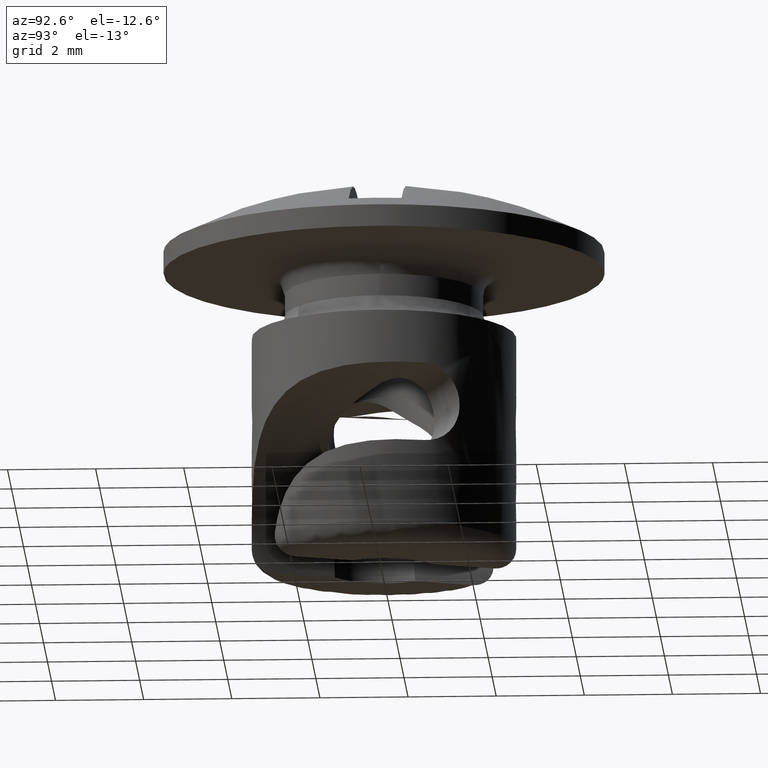
[diagram: clean part render]
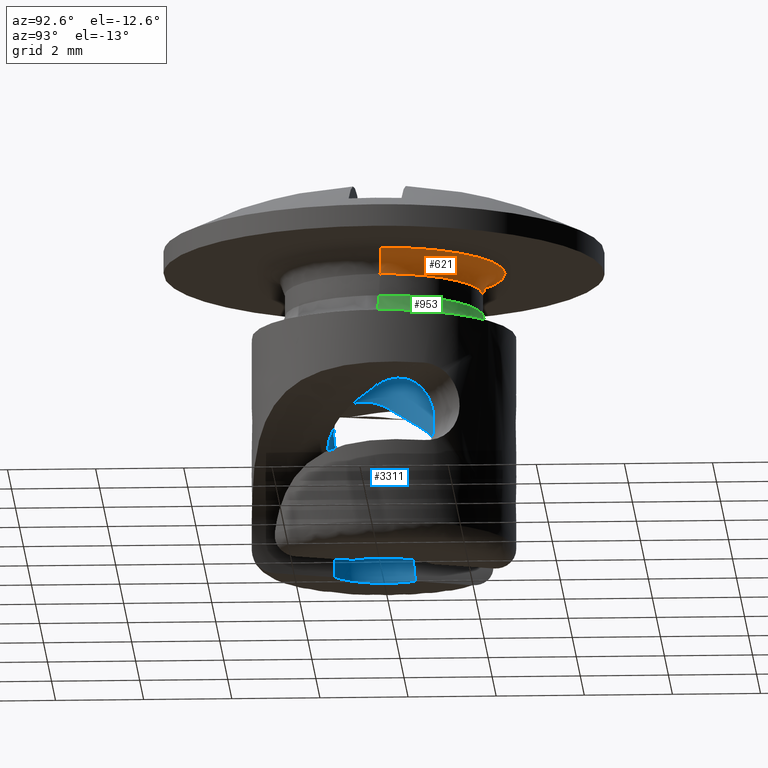
[diagram: same view with three faces highlighted in distinct colors, each labeled with its STEP entity id]
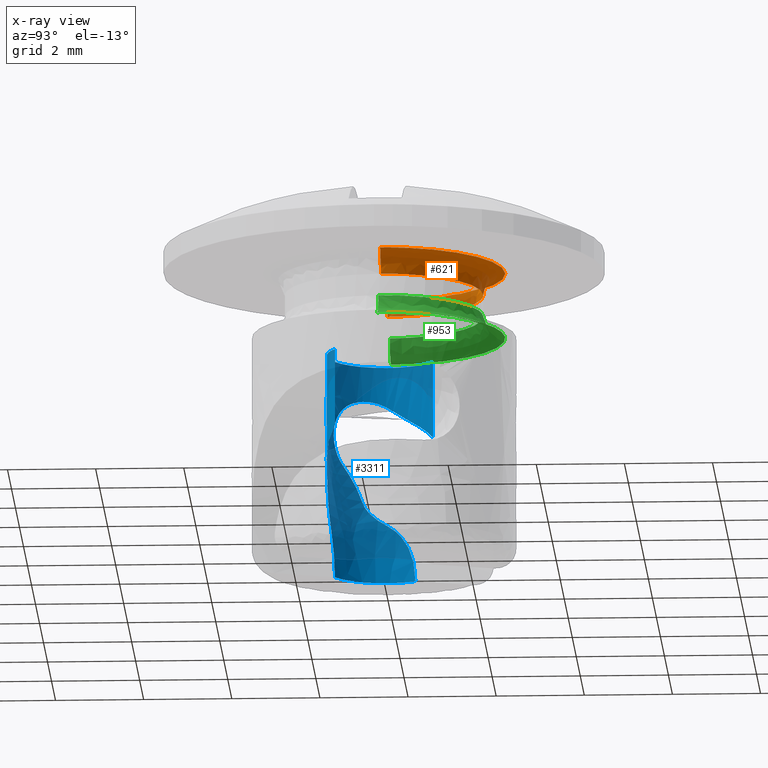
[diagram: x-ray of the same camera — body ghosted, the three highlighted faces saturated]
A machine part, auxiliary view with three faces highlighted in distinct colors.
The next image is the same camera in x-ray (body ghosted, the three faces saturated) — at least one of them is partly hidden behind the body in this view.
Their STEP definitions:

[orange] entity #621 — the highlighted face is a freeform B-spline surface patch.
#346=CARTESIAN_POINT('',(-2.750000000000000,0.0,5.496905E-014));
#347=VERTEX_POINT('',#346);
#348=CARTESIAN_POINT('',(-2.749782871458075,-0.034556609704872,5.452264E-014));
#349=VERTEX_POINT('',#348);
#350=CARTESIAN_POINT('',(-2.750000000000000,0.0,5.496905E-014));
#351=CARTESIAN_POINT('',(-2.749999999948959,-0.017278986990524,5.474583E-014));
#352=CARTESIAN_POINT('',(-2.749782871458075,-0.034556609704872,5.452264E-014));
#360=(BOUNDED_CURVE()B_SPLINE_CURVE(2,(#350,#351,#352),.UNSPECIFIED.,.F.,.U.)B_SPLINE_CURVE_WITH_KNOTS((3,3),(0.0,0.002215704079994),.UNSPECIFIED.)CURVE()GEOMETRIC_REPRESENTATION_ITEM()RATIONAL_B_SPLINE_CURVE((1.0,0.997404141200289,0.994854295640047))REPRESENTATION_ITEM(''));
#361=EDGE_CURVE('',#347,#349,#360,.T.);
#396=CARTESIAN_POINT('',(2.749782871458075,0.034556609704872,2.739134E-014));
#397=VERTEX_POINT('',#396);
#411=CARTESIAN_POINT('',(2.749782871458075,0.034556609704872,2.739134E-014));
#412=CARTESIAN_POINT('',(2.747421154181129,0.225015246663446,2.739718E-014));
#413=CARTESIAN_POINT('',(2.711373740235681,0.532688507916313,2.756823E-014));
#414=CARTESIAN_POINT('',(2.602639291412195,0.904454009660128,2.810173E-014));
#415=CARTESIAN_POINT('',(2.484969787623392,1.189520476824100,2.868276E-014));
#416=CARTESIAN_POINT('',(2.324902051586191,1.485801319773259,2.947602E-014));
#417=CARTESIAN_POINT('',(2.104609569589788,1.784203322922464,3.057120E-014));
#418=CARTESIAN_POINT('',(1.860745811851893,2.032438847439234,3.178614E-014));
#419=CARTESIAN_POINT('',(1.586949819905988,2.255815284604223,3.315195E-014));
#420=CARTESIAN_POINT('',(1.299931389796286,2.432936059386111,3.458552E-014));
#421=CARTESIAN_POINT('',(0.966758779711438,2.581098159844041,3.625142E-014));
#422=CARTESIAN_POINT('',(0.639859148547585,2.683062115113516,3.788733E-014));
#423=CARTESIAN_POINT('',(0.302105809486887,2.740305731628021,3.957906E-014));
#424=CARTESIAN_POINT('',(-0.062139408985700,2.756949581632268,4.140491E-014));
#425=CARTESIAN_POINT('',(-0.414890938039984,2.727724751720948,4.317457E-014));
#426=CARTESIAN_POINT('',(-0.759774732770037,2.649421114881068,4.490633E-014));
#427=CARTESIAN_POINT('',(-1.077159886471227,2.537379702794902,4.650127E-014));
#428=CARTESIAN_POINT('',(-1.424569872155509,2.365912888452518,4.824863E-014));
#429=CARTESIAN_POINT('',(-1.773185517658618,2.118390891306698,5.000444E-014));
#430=CARTESIAN_POINT('',(-2.060003419619596,1.833246774883832,5.145156E-014));
#431=CARTESIAN_POINT('',(-2.276728466134345,1.554016264308456,5.254705E-014));
#432=CARTESIAN_POINT('',(-2.447257419028718,1.270085169467347,5.341105E-014));
#433=CARTESIAN_POINT('',(-2.580942661077565,0.967126856670704,5.409091E-014));
#434=CARTESIAN_POINT('',(-2.668662700131359,0.682998521134084,5.453970E-014));
#435=CARTESIAN_POINT('',(-2.732842156530887,0.364130243539380,5.487155E-014));
#436=CARTESIAN_POINT('',(-2.750009366979201,0.140051245414527,5.496468E-014));
#437=CARTESIAN_POINT('',(-2.750000000000000,0.0,5.496905E-014));
#438=B_SPLINE_CURVE_WITH_KNOTS('',3,(#411,#412,#413,#414,#415,#416,#417,#418,#419,#420,#421,#422,#423,#424,#425,#426,#427,#428,#429,#430,#431,#432,#433,#434,#435,#436,#437),.UNSPECIFIED.,.F.,.U.,(4,1,1,1,1,1,1,1,1,1,1,1,1,1,1,1,1,1,1,1,1,1,1,1,4),(9.732828E-009,0.571412348802319,0.924346836372584,1.159632313122021,1.495760148540566,1.932726756703803,2.268853580995844,2.537754907507623,2.991528782831429,3.277236733553325,3.630170278449755,4.016715849888128,4.302414734800024,4.722569375178209,5.075507796041912,5.361215518162040,5.730952126796076,6.235144690588344,6.638496536839272,6.941012279927641,7.293946381827048,7.630070699270424,7.932588396814000,8.184683200495718,8.604835668774879),.UNSPECIFIED.);
#439=EDGE_CURVE('',#397,#347,#438,.T.);
#467=CARTESIAN_POINT('',(2.249822389316115,0.028270417823143,-0.500000475521371));
#468=VERTEX_POINT('',#467);
#484=CARTESIAN_POINT('',(2.249822389316115,0.028270417823143,-0.500000475521371));
#485=CARTESIAN_POINT('',(2.249821893902961,0.028271997818385,-1.020467E-010));
#486=CARTESIAN_POINT('',(2.749782871458076,0.034556609704872,2.739134E-014));
#494=(BOUNDED_CURVE()B_SPLINE_CURVE(2,(#484,#485,#486),.UNSPECIFIED.,.F.,.U.)B_SPLINE_CURVE_WITH_KNOTS((3,3),(-1.725135618571930,-0.274865356927566),.UNSPECIFIED.)CURVE()GEOMETRIC_REPRESENTATION_ITEM()RATIONAL_B_SPLINE_CURVE((0.883342497632617,0.624617050175272,0.883342149578353))REPRESENTATION_ITEM(''));
#495=EDGE_CURVE('',#468,#397,#494,.T.);
#499=CARTESIAN_POINT('',(-2.249822389316115,-0.028270417823144,-0.500000475521371));
#500=VERTEX_POINT('',#499);
#501=CARTESIAN_POINT('',(-2.249822389316116,-0.028270417823144,-0.500000475521371));
#502=CARTESIAN_POINT('',(-2.249821893902961,-0.028271997818386,-1.020330E-010));
#503=CARTESIAN_POINT('',(-2.749782871458076,-0.034556609704872,5.452264E-014));
#511=(BOUNDED_CURVE()B_SPLINE_CURVE(2,(#501,#502,#503),.UNSPECIFIED.,.F.,.U.)B_SPLINE_CURVE_WITH_KNOTS((3,3),(-1.725135618571930,-0.274865356927566),.UNSPECIFIED.)CURVE()GEOMETRIC_REPRESENTATION_ITEM()RATIONAL_B_SPLINE_CURVE((0.883342497632617,0.624617050175272,0.883342149578353))REPRESENTATION_ITEM(''));
#512=EDGE_CURVE('',#500,#349,#511,.T.);
#547=CARTESIAN_POINT('',(-2.251032604085169,-0.028288799046313,-0.534769027066615));
#548=CARTESIAN_POINT('',(-2.279321403131482,2.222743805038856,-0.534769027066615));
#549=CARTESIAN_POINT('',(-0.028288799046313,2.251032604085169,-0.534769027066615));
#550=CARTESIAN_POINT('',(2.222743805038856,2.279321403131482,-0.534769027066615));
#551=CARTESIAN_POINT('',(2.251032604085169,0.028288799046313,-0.534769027066615));
#552=CARTESIAN_POINT('',(-2.211056288242679,-0.027786415400946,0.038768651351483));
#553=CARTESIAN_POINT('',(-2.238842703643625,2.183269872841732,0.038768651351483));
#554=CARTESIAN_POINT('',(-0.027786415400946,2.211056288242679,0.038768651351483));
#555=CARTESIAN_POINT('',(2.183269872841732,2.238842703643625,0.038768651351483));
#556=CARTESIAN_POINT('',(2.211056288242679,0.027786415400947,0.038768651351483));
#557=CARTESIAN_POINT('',(-2.784548717477850,-0.034993513181660,-0.001210319800986));
#558=CARTESIAN_POINT('',(-2.819542230659510,2.749555204296190,-0.001210319800986));
#559=CARTESIAN_POINT('',(-0.034993513181660,2.784548717477850,-0.001210319800986));
#560=CARTESIAN_POINT('',(2.749555204296190,2.819542230659510,-0.001210319800986));
#561=CARTESIAN_POINT('',(2.784548717477850,0.034993513181660,-0.001210319800986));
#569=(BOUNDED_SURFACE()B_SPLINE_SURFACE(2,2,((#547,#552,#557),(#548,#553,#558),(#549,#554,#559),(#550,#555,#560),(#551,#556,#561)),.UNSPECIFIED.,.F.,.F.,.U.)B_SPLINE_SURFACE_WITH_KNOTS((3,2,3),(3,3),(0.0,4.613955674015531,9.227911348031062),(0.0,0.911187572013472),.UNSPECIFIED.)GEOMETRIC_REPRESENTATION_ITEM()RATIONAL_B_SPLINE_SURFACE(((0.910480188045054,0.597479367017781,0.910479825480873),(0.643806715102661,0.422481712037319,0.643806458731070),(0.910480188045054,0.597479367017781,0.910479825480873),(0.643806715102661,0.422481712037319,0.643806458731070),(0.910480188045054,0.597479367017781,0.910479825480873)))REPRESENTATION_ITEM('')SURFACE());
#570=CARTESIAN_POINT('',(-2.250000000000000,0.0,-0.499999999999945));
#571=VERTEX_POINT('',#570);
#572=CARTESIAN_POINT('',(-0.019633587222252,2.249914336647404,-0.500000237179640));
#573=VERTEX_POINT('',#572);
#574=CARTESIAN_POINT('',(-2.250000000000000,0.0,-0.499999999999945));
#575=CARTESIAN_POINT('',(-2.250000000000004,2.230451331862164,-0.500000001480715));
#576=CARTESIAN_POINT('',(-0.019633587222252,2.249914336647403,-0.500000237179640));
#584=(BOUNDED_CURVE()B_SPLINE_CURVE(2,(#574,#575,#576),.UNSPECIFIED.,.F.,.U.)B_SPLINE_CURVE_WITH_KNOTS((3,3),(0.0,0.248460193164341),.UNSPECIFIED.)CURVE()GEOMETRIC_REPRESENTATION_ITEM()RATIONAL_B_SPLINE_CURVE((1.0,0.708910777108336,0.996414230598439))REPRESENTATION_ITEM(''));
#585=EDGE_CURVE('',#571,#573,#584,.T.);
#586=ORIENTED_EDGE('',*,*,#585,.F.);
#587=CARTESIAN_POINT('',(-2.249822389316116,-0.028270417823144,-0.500000475521371));
#588=CARTESIAN_POINT('',(-2.249999999999108,-0.014135766836725,-0.500000237760658));
#589=CARTESIAN_POINT('',(-2.250000000000000,0.0,-0.499999999999945));
#597=(BOUNDED_CURVE()B_SPLINE_CURVE(2,(#587,#588,#589),.UNSPECIFIED.,.F.,.U.)B_SPLINE_CURVE_WITH_KNOTS((3,3),(0.997784543868147,1.0),.UNSPECIFIED.)CURVE()GEOMETRIC_REPRESENTATION_ITEM()RATIONAL_B_SPLINE_CURVE((0.994854866321043,0.997404431689606,1.0))REPRESENTATION_ITEM(''));
#598=EDGE_CURVE('',#500,#571,#597,.T.);
#599=ORIENTED_EDGE('',*,*,#598,.F.);
#600=ORIENTED_EDGE('',*,*,#512,.T.);
#601=ORIENTED_EDGE('',*,*,#361,.F.);
#602=ORIENTED_EDGE('',*,*,#439,.F.);
#603=ORIENTED_EDGE('',*,*,#495,.F.);
#604=CARTESIAN_POINT('',(-0.019633587222252,2.249914336647403,-0.500000237179640));
#605=CARTESIAN_POINT('',(-0.009816980490564,2.249999999999713,-0.500000238217032));
#606=CARTESIAN_POINT('',(-8.953763E-013,2.249999999999714,-0.500000239254406));
#607=CARTESIAN_POINT('',(2.221904975089807,2.249999999999841,-0.500000474046276));
#608=CARTESIAN_POINT('',(2.249822389316115,0.028270417823143,-0.500000475521371));
#616=(BOUNDED_CURVE()B_SPLINE_CURVE(2,(#604,#605,#606,#607,#608),.UNSPECIFIED.,.F.,.U.)B_SPLINE_CURVE_WITH_KNOTS((3,2,3),(0.248460193164341,0.250000000000000,0.497784543868147),.UNSPECIFIED.)CURVE()GEOMETRIC_REPRESENTATION_ITEM()RATIONAL_B_SPLINE_CURVE((0.996414230598439,0.998196004078212,1.0,0.709702349496941,0.994854866321044))REPRESENTATION_ITEM(''));
#617=EDGE_CURVE('',#573,#468,#616,.T.);
#618=ORIENTED_EDGE('',*,*,#617,.F.);
#619=EDGE_LOOP('',(#586,#599,#600,#601,#602,#603,#618));
#620=FACE_OUTER_BOUND('',#619,.T.);
#621=ADVANCED_FACE('',(#620),#569,.F.);

[blue] entity #3311 — the highlighted face is a freeform B-spline surface patch.
#1184=CARTESIAN_POINT('',(-1.291882453261104,0.145050773717589,-2.910261749099505));
#1185=VERTEX_POINT('',#1184);
#1234=CARTESIAN_POINT('',(-0.724460145316098,1.079347641040194,-3.655860843380850));
#1235=VERTEX_POINT('',#1234);
#1274=CARTESIAN_POINT('',(-1.291882453261104,0.145050773717589,-2.910261749099505));
#1275=CARTESIAN_POINT('',(-1.288094073668502,0.178693544850178,-2.935598186311950));
#1276=CARTESIAN_POINT('',(-1.275880942001856,0.258684313146053,-2.992206475836354));
#1277=CARTESIAN_POINT('',(-1.247602842210540,0.371846645643044,-3.065198215837437));
#1278=CARTESIAN_POINT('',(-1.218529104045362,0.454485570510161,-3.117913274595690));
#1279=CARTESIAN_POINT('',(-1.182316234570931,0.543938615875963,-3.176241188850724));
#1280=CARTESIAN_POINT('',(-1.128871166886486,0.652374760797243,-3.249152499892137));
#1281=CARTESIAN_POINT('',(-1.062274534623842,0.751789170406029,-3.324068710491397));
#1282=CARTESIAN_POINT('',(-0.986171470240869,0.849601815026308,-3.404974822243410));
#1283=CARTESIAN_POINT('',(-0.889469394950847,0.955347693671502,-3.501873174633609));
#1284=CARTESIAN_POINT('',(-0.784702644925899,1.038899743665871,-3.599936651634064));
#1285=CARTESIAN_POINT('',(-0.724460145316098,1.079347641040194,-3.655860843380850));
#1286=B_SPLINE_CURVE_WITH_KNOTS('',3,(#1274,#1275,#1276,#1277,#1278,#1279,#1280,#1281,#1282,#1283,#1284,#1285),.UNSPECIFIED.,.F.,.U.,(4,1,1,1,1,1,1,1,1,4),(0.000000801977647,0.126855702966990,0.295994480322531,0.412275445816767,0.433422416921096,0.634273153965932,0.835123269532216,0.856270204093799,1.078264491410524,1.353115323156339),.UNSPECIFIED.);
#1287=EDGE_CURVE('',#1185,#1235,#1286,.T.);
#1355=CARTESIAN_POINT('',(-1.175998318635364,-0.553260817730892,-5.024132768401571));
#1356=VERTEX_POINT('',#1355);
#1357=CARTESIAN_POINT('',(-0.845712628679764,-0.987304486818309,-4.234273412134620));
#1358=VERTEX_POINT('',#1357);
#1359=CARTESIAN_POINT('',(-1.175998318635364,-0.553260817730892,-5.024132768401571));
#1360=CARTESIAN_POINT('',(-1.170151447653381,-0.565739805633310,-4.986047597226094));
#1361=CARTESIAN_POINT('',(-1.156064267109533,-0.594698748116396,-4.905546100920215));
#1362=CARTESIAN_POINT('',(-1.128594407923344,-0.645853224129306,-4.785884919138868));
#1363=CARTESIAN_POINT('',(-1.092325233007733,-0.705881288420916,-4.665715023851450));
#1364=CARTESIAN_POINT('',(-1.047320057049053,-0.771572997664237,-4.550222201581152));
#1365=CARTESIAN_POINT('',(-0.992063563519109,-0.841613116937195,-4.439576756021566));
#1366=CARTESIAN_POINT('',(-0.926247012790544,-0.914724983674289,-4.333157588868291));
#1367=CARTESIAN_POINT('',(-0.872762657760414,-0.962926356999817,-4.267486801493662));
#1368=CARTESIAN_POINT('',(-0.845712628679764,-0.987304486818309,-4.234273412134620));
#1369=B_SPLINE_CURVE_WITH_KNOTS('',3,(#1359,#1360,#1361,#1362,#1363,#1364,#1365,#1366,#1367,#1368),.UNSPECIFIED.,.F.,.U.,(4,1,1,1,1,1,1,4),(0.313732260981067,0.399450518121082,0.497112740352803,0.595014033143373,0.693716577149052,0.793768861193918,0.895697381058491,1.0),.UNSPECIFIED.);
#1370=EDGE_CURVE('',#1356,#1358,#1369,.T.);
#2213=CARTESIAN_POINT('',(-1.291882453261104,0.145050773717589,-2.910261749099505));
#2214=CARTESIAN_POINT('',(-1.294519083182422,0.121567852232229,-2.892520843507092));
#2215=CARTESIAN_POINT('',(-1.296592218768113,0.097341090020533,-2.875685912842209));
#2216=CARTESIAN_POINT('',(-1.299378491138424,0.047351941286611,-2.843858744108745));
#2217=CARTESIAN_POINT('',(-1.300091645926863,0.021468290905004,-2.828802707206900));
#2218=CARTESIAN_POINT('',(-1.299788167546430,-0.057856899308287,-2.786975647484040));
#2219=CARTESIAN_POINT('',(-1.296371275510518,-0.112228935312408,-2.763840931968434));
#2220=CARTESIAN_POINT('',(-1.281802388587231,-0.223956367411052,-2.727421762221852));
#2221=CARTESIAN_POINT('',(-1.270424866488445,-0.281880205574748,-2.714173234111576));
#2222=CARTESIAN_POINT('',(-1.239901978459362,-0.395068190951062,-2.699626393851041));
#2223=CARTESIAN_POINT('',(-1.220753372851008,-0.450928426136616,-2.698031761811913));
#2224=CARTESIAN_POINT('',(-1.174205977667539,-0.561084276054883,-2.706804177015554));
#2225=CARTESIAN_POINT('',(-1.147788309819234,-0.613068823800320,-2.716983289208550));
#2226=CARTESIAN_POINT('',(-1.104080460543345,-0.686894594076447,-2.740287363777003));
#2227=CARTESIAN_POINT('',(-1.088760910362746,-0.710903370990459,-2.749450797736898));
#2228=CARTESIAN_POINT('',(-1.057143489636366,-0.757120575033124,-2.770291025452075));
#2229=CARTESIAN_POINT('',(-1.024784990137474,-0.801225989584974,-2.793470297975824));
#2230=CARTESIAN_POINT('',(-0.991228149183225,-0.841502632235549,-2.821071317186754));
#2231=CARTESIAN_POINT('',(-0.957209853519440,-0.880005238687047,-2.850837949479190));
#2232=CARTESIAN_POINT('',(-0.939897855652940,-0.898439767387699,-2.866875800412404));
#2233=CARTESIAN_POINT('',(-0.888041753834264,-0.950678611397710,-2.917734821829610));
#2234=CARTESIAN_POINT('',(-0.853749662413577,-0.981305681079802,-2.955047001574473));
#2235=CARTESIAN_POINT('',(-0.787031331838107,-1.035582448910645,-3.036546654493298));
#2236=CARTESIAN_POINT('',(-0.754345468869353,-1.059362400424059,-3.081168906755694));
#2237=CARTESIAN_POINT('',(-0.694802307969620,-1.099334132405295,-3.175273816793216));
#2238=CARTESIAN_POINT('',(-0.667734607200352,-1.115721376711151,-3.224897853281771));
#2239=CARTESIAN_POINT('',(-0.621663803759659,-1.142032316177487,-3.330428264480499));
#2240=CARTESIAN_POINT('',(-0.602590125602878,-1.151987741227718,-3.387107941076686));
#2241=CARTESIAN_POINT('',(-0.584138621037027,-1.161391288605498,-3.473620688947742));
#2242=CARTESIAN_POINT('',(-0.579607460701236,-1.163642847493550,-3.502815112825467));
#2243=CARTESIAN_POINT('',(-0.574087502096258,-1.166376022112555,-3.561970295301659));
#2244=CARTESIAN_POINT('',(-0.573120184757103,-1.166848006635903,-3.592166192397444));
#2245=CARTESIAN_POINT('',(-0.575834387580099,-1.165512258716644,-3.681581474816099));
#2246=CARTESIAN_POINT('',(-0.584972575173240,-1.161081759180263,-3.739937964147864));
#2247=CARTESIAN_POINT('',(-0.608160306212745,-1.149006955259361,-3.825791555263107));
#2248=CARTESIAN_POINT('',(-0.617422909734077,-1.144084695454505,-3.853904117405525));
#2249=CARTESIAN_POINT('',(-0.638206786349910,-1.132622151335682,-3.908287020823283));
#2250=CARTESIAN_POINT('',(-0.661332620605488,-1.119497849497617,-3.961146879601404));
#2251=CARTESIAN_POINT('',(-0.688331719367537,-1.102945501762463,-4.011303287217566));
#2252=CARTESIAN_POINT('',(-0.716954147006867,-1.084558014510075,-4.060218478115146));
#2253=CARTESIAN_POINT('',(-0.732104770413881,-1.074422783893612,-4.084079748870567));
#2254=CARTESIAN_POINT('',(-0.778780533160941,-1.041608244429324,-4.152727324572264));
#2255=CARTESIAN_POINT('',(-0.811747515830019,-1.016398576081574,-4.195056841058331));
#2256=CARTESIAN_POINT('',(-0.845712628679764,-0.987304486818309,-4.234273412134620));
#2257=B_SPLINE_CURVE_WITH_KNOTS('',3,(#2213,#2214,#2215,#2216,#2217,#2218,#2219,#2220,#2221,#2222,#2223,#2224,#2225,#2226,#2227,#2228,#2229,#2230,#2231,#2232,#2233,#2234,#2235,#2236,#2237,#2238,#2239,#2240,#2241,#2242,#2243,#2244,#2245,#2246,#2247,#2248,#2249,#2250,#2251,#2252,#2253,#2254,#2255,#2256),.UNSPECIFIED.,.F.,.U.,(4,2,2,2,2,2,2,2,1,2,2,2,2,2,2,2,2,2,2,1,2,2,4),(0.0,0.031250000000000,0.062500000000000,0.125000000000000,0.187500000000000,0.250000000000000,0.312500000000000,0.343750000000000,0.375000000000000,0.406250000000000,0.437500000000000,0.500000000000000,0.562500000000000,0.625000000000000,0.687500000000000,0.718750000000000,0.750000000000000,0.812499999999999,0.843749999999999,0.874999999999999,0.906249999999999,0.937500000000000,1.0),.UNSPECIFIED.);
#2258=EDGE_CURVE('',#1185,#1358,#2257,.T.);
#2967=CARTESIAN_POINT('',(-0.724495657301528,1.079400779391546,-1.900000000000000));
#2968=VERTEX_POINT('',#2967);
#2969=CARTESIAN_POINT('',(-1.300000000000000,0.0,-1.900000000000000));
#2970=VERTEX_POINT('',#2969);
#2971=CARTESIAN_POINT('',(-0.724495657301528,1.079400779391546,-1.900000000000000));
#2972=CARTESIAN_POINT('',(-1.299999999999983,0.693121275982073,-1.900000000000000));
#2973=CARTESIAN_POINT('',(-1.300000000000000,0.0,-1.900000000000000));
#2981=(BOUNDED_CURVE()B_SPLINE_CURVE(2,(#2971,#2972,#2973),.UNSPECIFIED.,.F.,.U.)B_SPLINE_CURVE_WITH_KNOTS((3,3),(0.845595525639268,1.0),.UNSPECIFIED.)CURVE()GEOMETRIC_REPRESENTATION_ITEM()RATIONAL_B_SPLINE_CURVE((0.861657142480007,0.819103906021144,1.0))REPRESENTATION_ITEM(''));
#2982=EDGE_CURVE('',#2968,#2970,#2981,.T.);
#3001=CARTESIAN_POINT('',(0.724495657301528,-1.079400779391546,-1.900000000000000));
#3002=VERTEX_POINT('',#3001);
#3016=CARTESIAN_POINT('',(-1.300000000000000,0.0,-1.900000000000000));
#3017=CARTESIAN_POINT('',(-1.300000000000009,-1.299999999999987,-1.900000000000000));
#3018=CARTESIAN_POINT('',(-2.485155E-014,-1.299999999999963,-1.900000000000000));
#3019=CARTESIAN_POINT('',(0.395832582156582,-1.299999999999956,-1.900000000000000));
#3020=CARTESIAN_POINT('',(0.724495657301528,-1.079400779391546,-1.900000000000000));
#3028=(BOUNDED_CURVE()B_SPLINE_CURVE(2,(#3016,#3017,#3018,#3019,#3020),.UNSPECIFIED.,.F.,.U.)B_SPLINE_CURVE_WITH_KNOTS((3,2,3),(0.0,0.250000000000000,0.345595525639268),.UNSPECIFIED.)CURVE()GEOMETRIC_REPRESENTATION_ITEM()RATIONAL_B_SPLINE_CURVE((1.0,0.707106781186548,1.0,0.888002875165404,0.861657142480007))REPRESENTATION_ITEM(''));
#3029=EDGE_CURVE('',#2970,#3002,#3028,.T.);
#3131=CARTESIAN_POINT('',(-0.724495657301528,1.079400779391546,-1.900000000000000));
#3132=CARTESIAN_POINT('',(-0.724460145316098,1.079347641040194,-3.655860843380850));
#3133=QUASI_UNIFORM_CURVE('',1,(#3131,#3132),.UNSPECIFIED.,.F.,.U.);
#3134=EDGE_CURVE('',#2968,#1235,#3133,.T.);
#3143=CARTESIAN_POINT('',(0.724456073987676,-1.079342403636328,-3.655783082852251));
#3144=VERTEX_POINT('',#3143);
#3159=CARTESIAN_POINT('',(0.724495657301528,-1.079400779391546,-1.900000000000000));
#3160=CARTESIAN_POINT('',(0.724456073987676,-1.079342403636328,-3.655783082852251));
#3161=QUASI_UNIFORM_CURVE('',1,(#3159,#3160),.UNSPECIFIED.,.F.,.U.);
#3162=EDGE_CURVE('',#3002,#3144,#3161,.T.);
#3168=CARTESIAN_POINT('',(0.724495335047736,-1.079400995688844,-1.774999999999999));
#3169=CARTESIAN_POINT('',(-0.354905660641107,-1.803896330736580,-1.774999999999999));
#3170=CARTESIAN_POINT('',(-1.079400995688844,-0.724495335047736,-1.774999999999999));
#3171=CARTESIAN_POINT('',(-1.803896330736580,0.354905660641107,-1.774999999999999));
#3172=CARTESIAN_POINT('',(-0.724495335047736,1.079400995688844,-1.774999999999999));
#3173=CARTESIAN_POINT('',(0.724495335047736,-1.079400995688844,-7.028125000000001));
#3174=CARTESIAN_POINT('',(-0.354905660641107,-1.803896330736580,-7.028125000000002));
#3175=CARTESIAN_POINT('',(-1.079400995688844,-0.724495335047736,-7.028125000000001));
#3176=CARTESIAN_POINT('',(-1.803896330736580,0.354905660641107,-7.028125000000002));
#3177=CARTESIAN_POINT('',(-0.724495335047736,1.079400995688844,-7.028125000000001));
#3185=(BOUNDED_SURFACE()B_SPLINE_SURFACE(2,1,((#3168,#3173),(#3169,#3174),(#3170,#3175),(#3171,#3176),(#3172,#3177)),.UNSPECIFIED.,.F.,.F.,.U.)B_SPLINE_SURFACE_WITH_KNOTS((3,2,3),(2,2),(0.0,1.570796326794897,3.141592653589793),(0.0,5.253125000000003),.UNSPECIFIED.)GEOMETRIC_REPRESENTATION_ITEM()RATIONAL_B_SPLINE_SURFACE(((1.0,1.0),(0.707106781186548,0.707106781186548),(1.0,1.0),(0.707106781186548,0.707106781186548),(1.0,1.0)))REPRESENTATION_ITEM('')SURFACE());
#3186=ORIENTED_EDGE('',*,*,#2982,.T.);
#3187=ORIENTED_EDGE('',*,*,#3029,.T.);
#3188=ORIENTED_EDGE('',*,*,#3162,.T.);
#3189=CARTESIAN_POINT('',(-0.327052007849755,-1.258187976481036,-5.500988904677560));
#3190=VERTEX_POINT('',#3189);
#3191=CARTESIAN_POINT('',(0.724456073987676,-1.079342403636328,-3.655783082852251));
#3192=CARTESIAN_POINT('',(0.652253222536705,-1.127830553258788,-3.722813513698588));
#3193=CARTESIAN_POINT('',(0.572813243069379,-1.170161357728722,-3.795918577033861));
#3194=CARTESIAN_POINT('',(0.387657438672408,-1.246257641372943,-3.970812830794794));
#3195=CARTESIAN_POINT('',(0.276943858887791,-1.274044630855019,-4.078595882267227));
#3196=CARTESIAN_POINT('',(0.177120747118997,-1.287921512264304,-4.193970857474853));
#3197=CARTESIAN_POINT('',(0.173387703523250,-1.288407427975805,-4.198347879819783));
#3198=CARTESIAN_POINT('',(0.167738399475216,-1.289191154129374,-4.204877807554128));
#3199=CARTESIAN_POINT('',(0.162179540533735,-1.289867699375370,-4.211496539503236));
#3200=CARTESIAN_POINT('',(0.156573452306565,-1.290597850457515,-4.218069318182521));
#3201=CARTESIAN_POINT('',(0.151065237803168,-1.291222030354184,-4.224735038057097));
#3202=CARTESIAN_POINT('',(0.145517602684899,-1.291888104627510,-4.231362947403801));
#3203=CARTESIAN_POINT('',(0.119897145952054,-1.294731004897032,-4.262535426600709));
#3204=CARTESIAN_POINT('',(0.068555850252827,-1.298965974258277,-4.328687483086855));
#3205=CARTESIAN_POINT('',(0.011751293402508,-1.300391998941629,-4.416012436384617));
#3206=CARTESIAN_POINT('',(-0.034220682637848,-1.299753648153488,-4.502888142986350));
#3207=CARTESIAN_POINT('',(-0.069373760122155,-1.298301144313765,-4.582191376729439));
#3208=CARTESIAN_POINT('',(-0.090962455073857,-1.296939917587437,-4.645091469200467));
#3209=CARTESIAN_POINT('',(-0.102804464846116,-1.296066441440018,-4.683758404569153));
#3210=CARTESIAN_POINT('',(-0.105259722410315,-1.295874653953548,-4.692069715857112));
#3211=CARTESIAN_POINT('',(-0.108578350940104,-1.295620512256571,-4.703137466885754));
#3212=CARTESIAN_POINT('',(-0.128510261071273,-1.293998510513705,-4.772569810110179));
#3213=CARTESIAN_POINT('',(-0.146939658327557,-1.291962591188533,-4.851358404857797));
#3214=CARTESIAN_POINT('',(-0.166820147041640,-1.289366958451577,-4.941614044423896));
#3215=CARTESIAN_POINT('',(-0.174229535246352,-1.288298502606258,-4.975472676606466));
#3216=CARTESIAN_POINT('',(-0.180394145569556,-1.287458774320441,-5.003690740492781));
#3217=CARTESIAN_POINT('',(-0.184188352629639,-1.286896907243613,-5.020598179030412));
#3218=CARTESIAN_POINT('',(-0.186678481668801,-1.286539827462597,-5.031881956525984));
#3219=CARTESIAN_POINT('',(-0.205731266194262,-1.283747549671211,-5.116378136808869));
#3220=CARTESIAN_POINT('',(-0.235926253082002,-1.279073566689587,-5.239890515740093));
#3221=CARTESIAN_POINT('',(-0.285062444262201,-1.268699908264410,-5.393797357410490));
#3222=CARTESIAN_POINT('',(-0.313867464479203,-1.261616267310684,-5.469102478684712));
#3223=CARTESIAN_POINT('',(-0.327052007849755,-1.258187976481036,-5.500988904677560));
#3224=B_SPLINE_CURVE_WITH_KNOTS('',3,(#3191,#3192,#3193,#3194,#3195,#3196,#3197,#3198,#3199,#3200,#3201,#3202,#3203,#3204,#3205,#3206,#3207,#3208,#3209,#3210,#3211,#3212,#3213,#3214,#3215,#3216,#3217,#3218,#3219,#3220,#3221,#3222,#3223),.UNSPECIFIED.,.F.,.U.,(4,1,1,2,1,1,1,1,1,1,1,1,1,1,1,1,1,1,1,1,1,1,1,1,1,2,1,1,4),(-0.000006362742265,0.329393749336426,0.346732073840370,0.797493197530866,0.806163090205005,0.814832982879145,0.823502565972496,0.832172149065846,0.840841375528231,0.849510601990617,0.858178165028180,0.962197563381705,1.100889147833895,1.170235694401061,1.256914764193707,1.360942354460251,1.369606659371876,1.378276379806169,1.386946100240462,1.404285153815131,1.594995872890618,1.629669445842608,1.681682770635549,1.699020545566529,1.716357317209188,1.733694088851848,1.976404481419224,2.115096676453447,2.219120879840304),.UNSPECIFIED.);
#3225=EDGE_CURVE('',#3144,#3190,#3224,.T.);
#3226=ORIENTED_EDGE('',*,*,#3225,.T.);
#3227=CARTESIAN_POINT('',(-0.622617727544132,-1.141204261010176,-6.900000000000000));
#3228=VERTEX_POINT('',#3227);
#3229=CARTESIAN_POINT('',(-0.622617727544132,-1.141204261010176,-6.900000000000000));
#3230=CARTESIAN_POINT('',(-0.622848797449392,-1.141078193991125,-6.778396551727228));
#3231=CARTESIAN_POINT('',(-0.616049462344006,-1.144861365112527,-6.658128612517196));
#3232=CARTESIAN_POINT('',(-0.589499680654113,-1.158755630791223,-6.419991523212293));
#3233=CARTESIAN_POINT('',(-0.569763166210196,-1.168830011431254,-6.302117689467109));
#3234=CARTESIAN_POINT('',(-0.531385670350056,-1.186519146345606,-6.126811642772315));
#3235=CARTESIAN_POINT('',(-0.517130538166062,-1.192838529991619,-6.068626691890885));
#3236=CARTESIAN_POINT('',(-0.485829876957860,-1.205925819771513,-5.952709286882478));
#3237=CARTESIAN_POINT('',(-0.468744767658829,-1.212706825558149,-5.894863577080842));
#3238=CARTESIAN_POINT('',(-0.413923194741008,-1.232958067700089,-5.723273602620413));
#3239=CARTESIAN_POINT('',(-0.372583032343841,-1.246352691723436,-5.611173548049455));
#3240=CARTESIAN_POINT('',(-0.327052007849755,-1.258187976481036,-5.500988904677560));
#3241=B_SPLINE_CURVE_WITH_KNOTS('',3,(#3229,#3230,#3231,#3232,#3233,#3234,#3235,#3236,#3237,#3238,#3239,#3240),.UNSPECIFIED.,.F.,.U.,(4,2,2,2,2,4),(0.0,0.250000000000001,0.500000000000003,0.625000000000002,0.750000000000002,1.0),.UNSPECIFIED.);
#3242=EDGE_CURVE('',#3228,#3190,#3241,.T.);
#3243=ORIENTED_EDGE('',*,*,#3242,.F.);
#3244=CARTESIAN_POINT('',(-1.118612934544240,0.662348173297480,-6.900000000000000));
#3245=VERTEX_POINT('',#3244);
#3246=CARTESIAN_POINT('',(-1.118612934544240,0.662348173297480,-6.900000000000000));
#3247=CARTESIAN_POINT('',(-1.153240514380487,0.603872526604417,-6.899999999999997));
#3248=CARTESIAN_POINT('',(-1.221712792890330,0.464339413358364,-6.900000000000016));
#3249=CARTESIAN_POINT('',(-1.279327683735365,0.262010899078564,-6.899999999999984));
#3250=CARTESIAN_POINT('',(-1.303548261482071,0.050937860989008,-6.900000000000028));
#3251=CARTESIAN_POINT('',(-1.297907253974560,-0.137172689981972,-6.899999999999952));
#3252=CARTESIAN_POINT('',(-1.259573637023962,-0.343505493949846,-6.900000000000059));
#3253=CARTESIAN_POINT('',(-1.184187691605245,-0.554195530908782,-6.900000000000031));
#3254=CARTESIAN_POINT('',(-1.079474652442956,-0.733425191356822,-6.900000000000041));
#3255=CARTESIAN_POINT('',(-0.949496640701104,-0.894396320042262,-6.900000000000024));
#3256=CARTESIAN_POINT('',(-0.807778391039111,-1.026516221489068,-6.899999999999918));
#3257=CARTESIAN_POINT('',(-0.684664627982462,-1.107357837879027,-6.900000000000106));
#3258=CARTESIAN_POINT('',(-0.622617727544132,-1.141204261010176,-6.900000000000000));
#3259=B_SPLINE_CURVE_WITH_KNOTS('',3,(#3246,#3247,#3248,#3249,#3250,#3251,#3252,#3253,#3254,#3255,#3256,#3257,#3258),.UNSPECIFIED.,.F.,.U.,(4,1,1,1,1,1,1,1,1,1,4),(6.895148E-009,0.203878939088785,0.464849214986703,0.627955383108633,0.839994117100111,1.027563610575317,1.255909201258759,1.508721754569008,1.647362236289365,1.875710892665718,2.087745229121986),.UNSPECIFIED.);
#3260=EDGE_CURVE('',#3245,#3228,#3259,.T.);
#3261=ORIENTED_EDGE('',*,*,#3260,.F.);
#3262=CARTESIAN_POINT('',(-1.299019557210460,0.050479599689580,-5.595313262140290));
#3263=VERTEX_POINT('',#3262);
#3264=CARTESIAN_POINT('',(-1.118612934544240,0.662348173297480,-6.900000000000000));
#3265=CARTESIAN_POINT('',(-1.118243712942615,0.662971736667767,-6.772336441949618));
#3266=CARTESIAN_POINT('',(-1.124638781896553,0.652547453184636,-6.646995415901373));
#3267=CARTESIAN_POINT('',(-1.142909682944657,0.619608827190586,-6.462459436564077));
#3268=CARTESIAN_POINT('',(-1.150439475780597,0.605693133586255,-6.401534435207452));
#3269=CARTESIAN_POINT('',(-1.167973572131896,0.571150500577036,-6.280957226523058));
#3270=CARTESIAN_POINT('',(-1.178052876416523,0.550354669164498,-6.220983266828790));
#3271=CARTESIAN_POINT('',(-1.199452758528921,0.502007889939797,-6.105553578274568));
#3272=CARTESIAN_POINT('',(-1.210808244890474,0.474412969236172,-6.049794041146068));
#3273=CARTESIAN_POINT('',(-1.227943004636942,0.427126497869342,-5.969316531112418));
#3274=CARTESIAN_POINT('',(-1.233669106793764,0.410378155753813,-5.943019221716495));
#3275=CARTESIAN_POINT('',(-1.244962588273286,0.374723697645467,-5.891542746743836));
#3276=CARTESIAN_POINT('',(-1.250553477819626,0.355726949929024,-5.866257380289901));
#3277=CARTESIAN_POINT('',(-1.266541182507614,0.295932573707341,-5.793136925323378));
#3278=CARTESIAN_POINT('',(-1.276164706498263,0.252424716529582,-5.748035046301731));
#3279=CARTESIAN_POINT('',(-1.287539962079587,0.181161516208597,-5.686123554619408));
#3280=CARTESIAN_POINT('',(-1.290818427018297,0.156403570365491,-5.666446139002344));
#3281=CARTESIAN_POINT('',(-1.296034523273626,0.104732052571746,-5.629107107365315));
#3282=CARTESIAN_POINT('',(-1.297955728757406,0.077855687744101,-5.611497702258245));
#3283=CARTESIAN_POINT('',(-1.299019557210460,0.050479599689580,-5.595313262140290));
#3284=B_SPLINE_CURVE_WITH_KNOTS('',3,(#3264,#3265,#3266,#3267,#3268,#3269,#3270,#3271,#3272,#3273,#3274,#3275,#3276,#3277,#3278,#3279,#3280,#3281,#3282,#3283),.UNSPECIFIED.,.F.,.U.,(4,2,2,2,2,2,2,2,2,4),(0.0,0.250000000000001,0.375000000000002,0.500000000000003,0.625000000000003,0.687500000000003,0.750000000000003,0.875000000000002,0.937500000000001,1.0),.UNSPECIFIED.);
#3285=EDGE_CURVE('',#3245,#3263,#3284,.T.);
#3286=ORIENTED_EDGE('',*,*,#3285,.T.);
#3287=CARTESIAN_POINT('',(-1.299019557210460,0.050479599689580,-5.595313262140290));
#3288=CARTESIAN_POINT('',(-1.300223176098009,0.019602675907153,-5.576849893989973));
#3289=CARTESIAN_POINT('',(-1.300369148201026,-0.046575691290231,-5.538429480682632));
#3290=CARTESIAN_POINT('',(-1.293173792224174,-0.143430518763450,-5.481550166475008));
#3291=CARTESIAN_POINT('',(-1.280285918583366,-0.229629142563406,-5.425618971812270));
#3292=CARTESIAN_POINT('',(-1.269018752919946,-0.283032951811217,-5.385853404777713));
#3293=CARTESIAN_POINT('',(-1.262801020662429,-0.308818906862184,-5.364991662280567));
#3294=CARTESIAN_POINT('',(-1.261091687736031,-0.315608249146612,-5.359333829557047));
#3295=CARTESIAN_POINT('',(-1.259822289945846,-0.320724425491740,-5.355115711683775));
#3296=CARTESIAN_POINT('',(-1.252893996131082,-0.347674321350215,-5.332286330764264));
#3297=CARTESIAN_POINT('',(-1.239300201706494,-0.394246664238208,-5.288534762419674));
#3298=CARTESIAN_POINT('',(-1.216922189682719,-0.458284637701003,-5.213167199220039));
#3299=CARTESIAN_POINT('',(-1.194329017981444,-0.513607335003432,-5.125522199576484));
#3300=CARTESIAN_POINT('',(-1.181252961150331,-0.542099701314996,-5.057948705621390));
#3301=CARTESIAN_POINT('',(-1.175998318635364,-0.553260817730892,-5.024132768401571));
#3302=B_SPLINE_CURVE_WITH_KNOTS('',3,(#3287,#3288,#3289,#3290,#3291,#3292,#3293,#3294,#3295,#3296,#3297,#3298,#3299,#3300,#3301),.UNSPECIFIED.,.F.,.U.,(4,1,1,1,1,1,1,1,1,1,1,1,4),(-0.000001612681453,0.107984392107921,0.229458903649608,0.337437874428866,0.418420683912787,0.431917680013083,0.438671638344136,0.445425596675189,0.452170610012854,0.546657342738554,0.641139625814187,0.755868327358909,0.863851667082957),.UNSPECIFIED.);
#3303=EDGE_CURVE('',#3263,#1356,#3302,.T.);
#3304=ORIENTED_EDGE('',*,*,#3303,.T.);
#3305=ORIENTED_EDGE('',*,*,#1370,.T.);
#3306=ORIENTED_EDGE('',*,*,#2258,.F.);
#3307=ORIENTED_EDGE('',*,*,#1287,.T.);
#3308=ORIENTED_EDGE('',*,*,#3134,.F.);
#3309=EDGE_LOOP('',(#3186,#3187,#3188,#3226,#3243,#3261,#3286,#3304,#3305,#3306,#3307,#3308));
#3310=FACE_OUTER_BOUND('',#3309,.T.);
#3311=ADVANCED_FACE('',(#3310),#3185,.F.);

[green] entity #953 — the highlighted face is a freeform B-spline surface patch.
#640=CARTESIAN_POINT('',(-0.019633703514247,2.249914335632650,-1.000000009979010));
#641=VERTEX_POINT('',#640);
#642=CARTESIAN_POINT('',(-2.249822349458519,0.028273589742916,-1.000000019662934));
#643=VERTEX_POINT('',#642);
#644=CARTESIAN_POINT('',(-0.019633703514247,2.249914335632651,-1.000000009979010));
#645=CARTESIAN_POINT('',(-2.222144457690948,2.230694295807431,-1.000000019602452));
#646=CARTESIAN_POINT('',(-2.249822349458519,0.028273589742916,-1.000000019662934));
#654=(BOUNDED_CURVE()B_SPLINE_CURVE(2,(#644,#645,#646),.UNSPECIFIED.,.F.,.U.)B_SPLINE_CURVE_WITH_KNOTS((3,3),(0.251539815940075,0.497784295921308),.UNSPECIFIED.)CURVE()GEOMETRIC_REPRESENTATION_ITEM()RATIONAL_B_SPLINE_CURVE((0.996414209528255,0.711474669414962,0.994854295643046))REPRESENTATION_ITEM(''));
#655=EDGE_CURVE('',#641,#643,#654,.T.);
#723=CARTESIAN_POINT('',(2.250000000000000,0.0,-1.0));
#724=VERTEX_POINT('',#723);
#725=CARTESIAN_POINT('',(2.250000000000000,0.0,-1.0));
#726=CARTESIAN_POINT('',(2.250000000000000,2.249999999999890,-1.000000000061764));
#727=CARTESIAN_POINT('',(1.548655E-015,2.249999999999778,-1.000000009893222));
#728=CARTESIAN_POINT('',(-0.009817038639435,2.249999999999777,-1.000000009936118));
#729=CARTESIAN_POINT('',(-0.019633703514247,2.249914335632651,-1.000000009979010));
#737=(BOUNDED_CURVE()B_SPLINE_CURVE(2,(#725,#726,#727,#728,#729),.UNSPECIFIED.,.F.,.U.)B_SPLINE_CURVE_WITH_KNOTS((3,2,3),(0.0,0.250000000000000,0.251539815940075),.UNSPECIFIED.)CURVE()GEOMETRIC_REPRESENTATION_ITEM()RATIONAL_B_SPLINE_CURVE((1.0,0.707106781186547,1.0,0.998195993411725,0.996414209528255))REPRESENTATION_ITEM(''));
#738=EDGE_CURVE('',#724,#641,#737,.T.);
#745=CARTESIAN_POINT('',(2.249822349458519,-0.028273589742916,-1.000000019662934));
#746=VERTEX_POINT('',#745);
#760=CARTESIAN_POINT('',(2.249822349458519,-0.028273589742916,-1.000000019662934));
#761=CARTESIAN_POINT('',(2.250000000000000,-0.014137352984439,-1.000000009831467));
#762=CARTESIAN_POINT('',(2.250000000000000,0.0,-1.0));
#770=(BOUNDED_CURVE()B_SPLINE_CURVE(2,(#760,#761,#762),.UNSPECIFIED.,.F.,.U.)B_SPLINE_CURVE_WITH_KNOTS((3,3),(0.997784295921308,1.0),.UNSPECIFIED.)CURVE()GEOMETRIC_REPRESENTATION_ITEM()RATIONAL_B_SPLINE_CURVE((0.994854295643046,0.997404141201816,1.0))REPRESENTATION_ITEM(''));
#771=EDGE_CURVE('',#746,#724,#770,.T.);
#801=CARTESIAN_POINT('',(-2.749782871457951,0.034556609704881,-1.500000000000000));
#802=VERTEX_POINT('',#801);
#816=CARTESIAN_POINT('',(2.749782871457951,-0.034556609704881,-1.500000000000000));
#817=VERTEX_POINT('',#816);
#848=CARTESIAN_POINT('',(2.249822349458519,-0.028273589742916,-1.000000019662934));
#849=CARTESIAN_POINT('',(2.249822369119764,-0.028273590000788,-1.499999999897788));
#850=CARTESIAN_POINT('',(2.749782871457951,-0.034556609704881,-1.500000000000000));
#858=(BOUNDED_CURVE()B_SPLINE_CURVE(2,(#848,#849,#850),.UNSPECIFIED.,.F.,.U.)B_SPLINE_CURVE_WITH_KNOTS((3,3),(-1.725134602953325,-0.274865356927823),.UNSPECIFIED.)CURVE()GEOMETRIC_REPRESENTATION_ITEM()RATIONAL_B_SPLINE_CURVE((0.883342135264028,0.624617231359495,0.883342149578262))REPRESENTATION_ITEM(''));
#859=EDGE_CURVE('',#746,#817,#858,.T.);
#864=CARTESIAN_POINT('',(-2.249822349458519,0.028273589742916,-1.000000019662934));
#865=CARTESIAN_POINT('',(-2.249822369119764,0.028273590000788,-1.499999999897788));
#866=CARTESIAN_POINT('',(-2.749782871457951,0.034556609704881,-1.500000000000000));
#874=(BOUNDED_CURVE()B_SPLINE_CURVE(2,(#864,#865,#866),.UNSPECIFIED.,.F.,.U.)B_SPLINE_CURVE_WITH_KNOTS((3,3),(-1.725134602953325,-0.274865356927823),.UNSPECIFIED.)CURVE()GEOMETRIC_REPRESENTATION_ITEM()RATIONAL_B_SPLINE_CURVE((0.883342135264028,0.624617231359495,0.883342149578262))REPRESENTATION_ITEM(''));
#875=EDGE_CURVE('',#643,#802,#874,.T.);
#880=CARTESIAN_POINT('',(2.251032571150834,-0.028288798632426,-0.965231445443377));
#881=CARTESIAN_POINT('',(2.279321369783262,2.222743772518409,-0.965231445443377));
#882=CARTESIAN_POINT('',(0.028288798632427,2.251032571150834,-0.965231445443377));
#883=CARTESIAN_POINT('',(-2.222743772518409,2.279321369783262,-0.965231445443377));
#884=CARTESIAN_POINT('',(-2.251032571150834,0.028288798632427,-0.965231445443377));
#885=CARTESIAN_POINT('',(2.211056838643848,-0.027786422317855,-1.538768587008877));
#886=CARTESIAN_POINT('',(2.238843260961703,2.183270416325992,-1.538768587008877));
#887=CARTESIAN_POINT('',(0.027786422317856,2.211056838643848,-1.538768587008877));
#888=CARTESIAN_POINT('',(-2.183270416325992,2.238843260961703,-1.538768587008877));
#889=CARTESIAN_POINT('',(-2.211056838643848,0.027786422317856,-1.538768587008877));
#890=CARTESIAN_POINT('',(2.784548695000571,-0.034993512899187,-1.498789681765882));
#891=CARTESIAN_POINT('',(2.819542207899759,2.749555182101385,-1.498789681765882));
#892=CARTESIAN_POINT('',(0.034993512899187,2.784548695000571,-1.498789681765882));
#893=CARTESIAN_POINT('',(-2.749555182101385,2.819542207899759,-1.498789681765882));
#894=CARTESIAN_POINT('',(-2.784548695000571,0.034993512899187,-1.498789681765882));
#902=(BOUNDED_SURFACE()B_SPLINE_SURFACE(2,2,((#880,#885,#890),(#881,#886,#891),(#882,#887,#892),(#883,#888,#893),(#884,#889,#894)),.UNSPECIFIED.,.F.,.F.,.U.)B_SPLINE_SURFACE_WITH_KNOTS((3,2,3),(3,3),(0.0,4.613955636771016,9.227911273542032),(0.0,0.911186972831271),.UNSPECIFIED.)GEOMETRIC_REPRESENTATION_ITEM()RATIONAL_B_SPLINE_SURFACE(((0.910479795090997,0.597479572841838,0.910479806786608),(0.643806437242182,0.422481857576905,0.643806445512228),(0.910479795090997,0.597479572841838,0.910479806786608),(0.643806437242182,0.422481857576905,0.643806445512228),(0.910479795090997,0.597479572841838,0.910479806786608)))REPRESENTATION_ITEM('')SURFACE());
#903=CARTESIAN_POINT('',(2.750000000000000,0.0,-1.500000000000000));
#904=VERTEX_POINT('',#903);
#905=CARTESIAN_POINT('',(-2.749782871457951,0.034556609704881,-1.500000000000000));
#906=CARTESIAN_POINT('',(-2.747419337377187,0.225014214771974,-1.500000000000005));
#907=CARTESIAN_POINT('',(-2.707448835963517,0.566254884337890,-1.499999999999991));
#908=CARTESIAN_POINT('',(-2.578353768331522,0.979383591813724,-1.500000000000010));
#909=CARTESIAN_POINT('',(-2.410807146910958,1.340649961597032,-1.499999999999994));
#910=CARTESIAN_POINT('',(-2.207935959180631,1.658073540327578,-1.500000000000007));
#911=CARTESIAN_POINT('',(-1.910153117336537,1.994494905062924,-1.499999999999984));
#912=CARTESIAN_POINT('',(-1.610213076670891,2.240724717556916,-1.500000000000005));
#913=CARTESIAN_POINT('',(-1.317905184513432,2.418632814385269,-1.499999999999999));
#914=CARTESIAN_POINT('',(-1.075404527706221,2.535479047099735,-1.500000000000001));
#915=CARTESIAN_POINT('',(-0.759781909721190,2.652244518217125,-1.499999999999999));
#916=CARTESIAN_POINT('',(-0.369817384141377,2.738129075352092,-1.499999999999999));
#917=CARTESIAN_POINT('',(0.084843715627484,2.760295873923297,-1.500000000000000));
#918=CARTESIAN_POINT('',(0.464671881674323,2.718272153404437,-1.500000000000001));
#919=CARTESIAN_POINT('',(0.797122014057375,2.637433462811273,-1.499999999999999));
#920=CARTESIAN_POINT('',(1.066402599866652,2.540519404776103,-1.499999999999999));
#921=CARTESIAN_POINT('',(1.374122921147385,2.390965012974542,-1.500000000000002));
#922=CARTESIAN_POINT('',(1.703017802056292,2.175137714181890,-1.499999999999998));
#923=CARTESIAN_POINT('',(2.045833943771758,1.858484396239845,-1.500000000000002));
#924=CARTESIAN_POINT('',(2.318429159979011,1.500531455205059,-1.500000000000000));
#925=CARTESIAN_POINT('',(2.512072165759411,1.139181264308900,-1.500000000000000));
#926=CARTESIAN_POINT('',(2.639762205474763,0.797366440340018,-1.500000000000000));
#927=CARTESIAN_POINT('',(2.727756275300900,0.420153490240909,-1.499999999999999));
#928=CARTESIAN_POINT('',(2.750011849069523,0.151257188523880,-1.500000000000000));
#929=CARTESIAN_POINT('',(2.750000000000000,0.0,-1.500000000000000));
#930=B_SPLINE_CURVE_WITH_KNOTS('',3,(#905,#906,#907,#908,#909,#910,#911,#912,#913,#914,#915,#916,#917,#918,#919,#920,#921,#922,#923,#924,#925,#926,#927,#928,#929),.UNSPECIFIED.,.F.,.U.,(4,1,1,1,1,1,1,1,1,1,1,1,1,1,1,1,1,1,1,1,1,1,4),(9.733155E-009,0.571412348802559,1.025181114045636,1.294083471212801,1.764662336465515,2.151209262758447,2.638594645036717,2.924303229028280,3.176394943983534,3.445300919602486,3.932681004345960,4.369637766317726,4.806601178466564,5.075507796042002,5.394824260679445,5.663726572354487,6.100693949896016,6.571271226822172,7.058655675783949,7.445203844630017,7.798132875590945,8.151065704356784,8.604835668774777),.UNSPECIFIED.);
#931=EDGE_CURVE('',#802,#904,#930,.T.);
#932=ORIENTED_EDGE('',*,*,#931,.F.);
#933=ORIENTED_EDGE('',*,*,#875,.F.);
#934=ORIENTED_EDGE('',*,*,#655,.F.);
#935=ORIENTED_EDGE('',*,*,#738,.F.);
#936=ORIENTED_EDGE('',*,*,#771,.F.);
#937=ORIENTED_EDGE('',*,*,#859,.T.);
#938=CARTESIAN_POINT('',(2.750000000000000,0.0,-1.500000000000000));
#939=CARTESIAN_POINT('',(2.749999999948897,-0.017278986990529,-1.500000000000000));
#940=CARTESIAN_POINT('',(2.749782871457951,-0.034556609704881,-1.499999999999999));
#948=(BOUNDED_CURVE()B_SPLINE_CURVE(2,(#938,#939,#940),.UNSPECIFIED.,.F.,.U.)B_SPLINE_CURVE_WITH_KNOTS((3,3),(0.0,0.002215704079995),.UNSPECIFIED.)CURVE()GEOMETRIC_REPRESENTATION_ITEM()RATIONAL_B_SPLINE_CURVE((1.0,0.997404141200288,0.994854295640046))REPRESENTATION_ITEM(''));
#949=EDGE_CURVE('',#904,#817,#948,.T.);
#950=ORIENTED_EDGE('',*,*,#949,.F.);
#951=EDGE_LOOP('',(#932,#933,#934,#935,#936,#937,#950));
#952=FACE_OUTER_BOUND('',#951,.T.);
#953=ADVANCED_FACE('',(#952),#902,.F.);